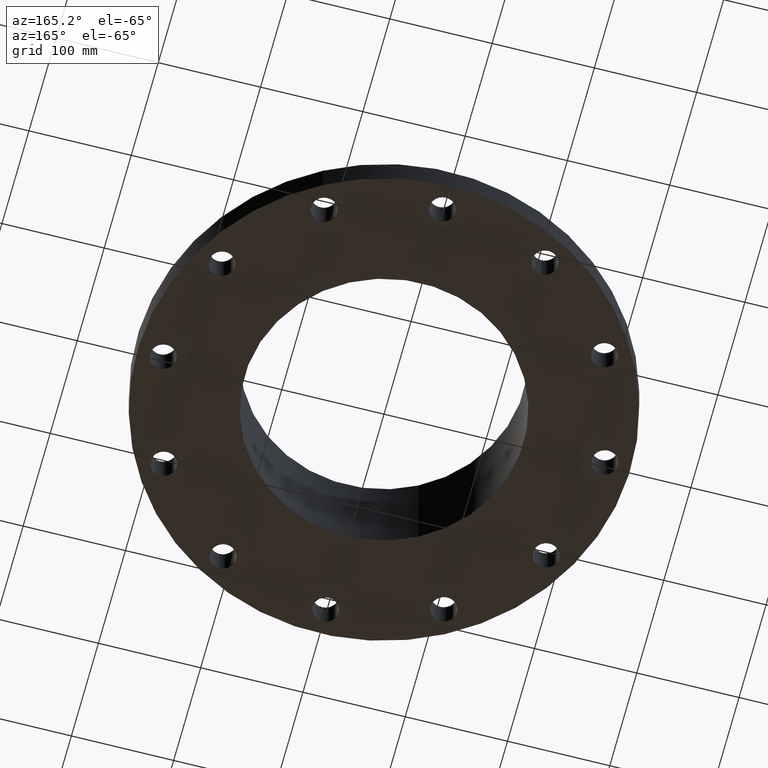
[diagram: clean part render]
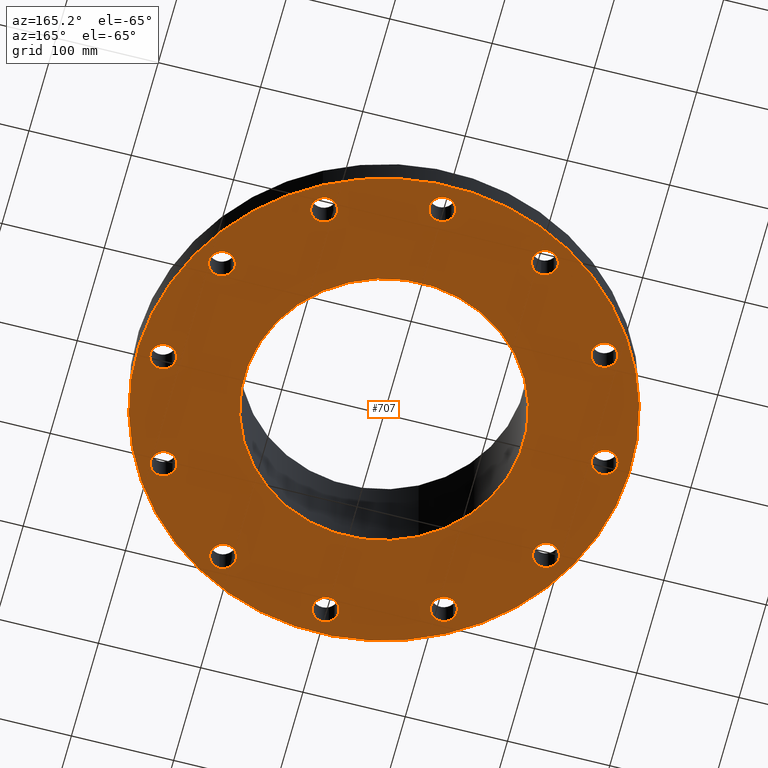
[diagram: same view with one face highlighted and labeled with its STEP entity id]
A machine part, auxiliary view. The second image highlights one B-rep face of the part: STEP entity #707.
In plain terms, the highlighted planar face has unit normal (0, 0, -1).
Its self-contained STEP definition (entity closure, byte-faithful):
#51=AXIS2_PLACEMENT_3D('Circle Axis2P3D',#49,#50,$) ;
#77=AXIS2_PLACEMENT_3D('Circle Axis2P3D',#75,#76,$) ;
#99=AXIS2_PLACEMENT_3D('Circle Axis2P3D',#97,#98,$) ;
#134=AXIS2_PLACEMENT_3D('Circle Axis2P3D',#132,#133,$) ;
#463=AXIS2_PLACEMENT_3D('Circle Axis2P3D',#461,#462,$) ;
#482=AXIS2_PLACEMENT_3D('Circle Axis2P3D',#480,#481,$) ;
#495=AXIS2_PLACEMENT_3D('Plane Axis2P3D',#492,#493,#494) ;
#511=AXIS2_PLACEMENT_3D('Circle Axis2P3D',#509,#510,$) ;
#520=AXIS2_PLACEMENT_3D('Circle Axis2P3D',#518,#519,$) ;
#529=AXIS2_PLACEMENT_3D('Circle Axis2P3D',#527,#528,$) ;
#538=AXIS2_PLACEMENT_3D('Circle Axis2P3D',#536,#537,$) ;
#547=AXIS2_PLACEMENT_3D('Circle Axis2P3D',#545,#546,$) ;
#556=AXIS2_PLACEMENT_3D('Circle Axis2P3D',#554,#555,$) ;
#565=AXIS2_PLACEMENT_3D('Circle Axis2P3D',#563,#564,$) ;
#574=AXIS2_PLACEMENT_3D('Circle Axis2P3D',#572,#573,$) ;
#583=AXIS2_PLACEMENT_3D('Circle Axis2P3D',#581,#582,$) ;
#592=AXIS2_PLACEMENT_3D('Circle Axis2P3D',#590,#591,$) ;
#601=AXIS2_PLACEMENT_3D('Circle Axis2P3D',#599,#600,$) ;
#610=AXIS2_PLACEMENT_3D('Circle Axis2P3D',#608,#609,$) ;
#619=AXIS2_PLACEMENT_3D('Circle Axis2P3D',#617,#618,$) ;
#628=AXIS2_PLACEMENT_3D('Circle Axis2P3D',#626,#627,$) ;
#637=AXIS2_PLACEMENT_3D('Circle Axis2P3D',#635,#636,$) ;
#646=AXIS2_PLACEMENT_3D('Circle Axis2P3D',#644,#645,$) ;
#655=AXIS2_PLACEMENT_3D('Circle Axis2P3D',#653,#654,$) ;
#664=AXIS2_PLACEMENT_3D('Circle Axis2P3D',#662,#663,$) ;
#673=AXIS2_PLACEMENT_3D('Circle Axis2P3D',#671,#672,$) ;
#682=AXIS2_PLACEMENT_3D('Circle Axis2P3D',#680,#681,$) ;
#691=AXIS2_PLACEMENT_3D('Circle Axis2P3D',#689,#690,$) ;
#700=AXIS2_PLACEMENT_3D('Circle Axis2P3D',#698,#699,$) ;
#44=CARTESIAN_POINT('Vertex',(8.06120871909,0.239712769303,0.)) ;
#49=CARTESIAN_POINT('Axis2P3D Location',(8.50000000003,0.,0.)) ;
#53=CARTESIAN_POINT('Vertex',(8.93879128098,-0.239712769303,0.)) ;
#75=CARTESIAN_POINT('Axis2P3D Location',(8.50000000003,0.,0.)) ;
#97=CARTESIAN_POINT('Axis2P3D Location',(0.,0.,5.59482469102E-016)) ;
#101=CARTESIAN_POINT('Vertex',(-4.55454261676,-8.33703433799,5.59482469102E-016)) ;
#103=CARTESIAN_POINT('Vertex',(4.55454261676,8.33703433799,5.59482469102E-016)) ;
#132=CARTESIAN_POINT('Axis2P3D Location',(0.,0.,5.59482469102E-016)) ;
#458=CARTESIAN_POINT('Vertex',(-2.57691227001,-4.71700627018,-3.91637728372E-014)) ;
#461=CARTESIAN_POINT('Axis2P3D Location',(0.,0.,-3.91637728372E-014)) ;
#465=CARTESIAN_POINT('Vertex',(2.57691227001,4.71700627018,-3.91637728372E-014)) ;
#480=CARTESIAN_POINT('Axis2P3D Location',(0.,0.,-3.91637728372E-014)) ;
#492=CARTESIAN_POINT('Axis2P3D Location',(0.,5.37500000002,0.)) ;
#509=CARTESIAN_POINT('Axis2P3D Location',(7.3612159322,-4.25000000002,0.)) ;
#513=CARTESIAN_POINT('Vertex',(7.10106792059,-3.82300701172,0.)) ;
#515=CARTESIAN_POINT('Vertex',(7.6213639438,-4.67699298832,0.)) ;
#518=CARTESIAN_POINT('Axis2P3D Location',(7.3612159322,-4.25000000002,0.)) ;
#527=CARTESIAN_POINT('Axis2P3D Location',(4.25000000002,-7.3612159322,0.)) ;
#531=CARTESIAN_POINT('Vertex',(4.23820170737,-6.86135515129,0.)) ;
#533=CARTESIAN_POINT('Vertex',(4.26179829266,-7.86107671311,0.)) ;
#536=CARTESIAN_POINT('Axis2P3D Location',(4.25000000002,-7.3612159322,0.)) ;
#545=CARTESIAN_POINT('Axis2P3D Location',(5.59482469102E-016,-8.50000000003,0.)) ;
#549=CARTESIAN_POINT('Vertex',(0.239712769303,-8.06120871909,0.)) ;
#551=CARTESIAN_POINT('Vertex',(-0.239712769303,-8.93879128098,0.)) ;
#554=CARTESIAN_POINT('Axis2P3D Location',(-4.19611851827E-016,-8.50000000003,0.)) ;
#563=CARTESIAN_POINT('Axis2P3D Location',(-4.25000000002,-7.3612159322,0.)) ;
#567=CARTESIAN_POINT('Vertex',(-3.82300701172,-7.10106792059,0.)) ;
#569=CARTESIAN_POINT('Vertex',(-4.67699298832,-7.6213639438,-1.1189649382E-015)) ;
#572=CARTESIAN_POINT('Axis2P3D Location',(-4.25000000002,-7.3612159322,0.)) ;
#581=CARTESIAN_POINT('Axis2P3D Location',(-7.3612159322,-4.25000000002,0.)) ;
#585=CARTESIAN_POINT('Vertex',(-6.86135515129,-4.23820170737,0.)) ;
#587=CARTESIAN_POINT('Vertex',(-7.86107671311,-4.26179829266,0.)) ;
#590=CARTESIAN_POINT('Axis2P3D Location',(-7.3612159322,-4.25000000002,0.)) ;
#599=CARTESIAN_POINT('Axis2P3D Location',(-8.50000000003,-1.1189649382E-015,0.)) ;
#603=CARTESIAN_POINT('Vertex',(-8.06120871909,-0.239712769303,0.)) ;
#605=CARTESIAN_POINT('Vertex',(-8.93879128098,0.239712769303,0.)) ;
#608=CARTESIAN_POINT('Axis2P3D Location',(-8.50000000003,-1.1189649382E-015,0.)) ;
#617=CARTESIAN_POINT('Axis2P3D Location',(-7.3612159322,4.25000000002,0.)) ;
#621=CARTESIAN_POINT('Vertex',(-7.10106792059,3.82300701172,0.)) ;
#623=CARTESIAN_POINT('Vertex',(-7.6213639438,4.67699298832,0.)) ;
#626=CARTESIAN_POINT('Axis2P3D Location',(-7.3612159322,4.25000000002,0.)) ;
#635=CARTESIAN_POINT('Axis2P3D Location',(-4.25000000002,7.3612159322,0.)) ;
#639=CARTESIAN_POINT('Vertex',(-4.23820170737,6.86135515129,0.)) ;
#641=CARTESIAN_POINT('Vertex',(-4.26179829266,7.86107671311,0.)) ;
#644=CARTESIAN_POINT('Axis2P3D Location',(-4.25000000002,7.3612159322,0.)) ;
#653=CARTESIAN_POINT('Axis2P3D Location',(-4.19611851827E-016,8.50000000003,0.)) ;
#657=CARTESIAN_POINT('Vertex',(-0.239712769303,8.06120871909,0.)) ;
#659=CARTESIAN_POINT('Vertex',(0.239712769303,8.93879128098,0.)) ;
#662=CARTESIAN_POINT('Axis2P3D Location',(2.09805925913E-016,8.50000000003,0.)) ;
#671=CARTESIAN_POINT('Axis2P3D Location',(4.25000000002,7.3612159322,0.)) ;
#675=CARTESIAN_POINT('Vertex',(3.82300701172,7.10106792059,0.)) ;
#677=CARTESIAN_POINT('Vertex',(4.67699298832,7.6213639438,0.)) ;
#680=CARTESIAN_POINT('Axis2P3D Location',(4.25000000002,7.3612159322,0.)) ;
#689=CARTESIAN_POINT('Axis2P3D Location',(7.3612159322,4.25000000002,0.)) ;
#693=CARTESIAN_POINT('Vertex',(6.86135515129,4.23820170737,0.)) ;
#695=CARTESIAN_POINT('Vertex',(7.86107671311,4.26179829266,0.)) ;
#698=CARTESIAN_POINT('Axis2P3D Location',(7.3612159322,4.25000000002,0.)) ;
#50=DIRECTION('Axis2P3D Direction',(0.,-0.,-0.0393700787402)) ;
#76=DIRECTION('Axis2P3D Direction',(0.,-0.,-0.0393700787402)) ;
#98=DIRECTION('Axis2P3D Direction',(0.,0.,-0.0393700787402)) ;
#133=DIRECTION('Axis2P3D Direction',(0.,0.,-0.0393700787402)) ;
#462=DIRECTION('Axis2P3D Direction',(0.,0.,-0.0393700787402)) ;
#481=DIRECTION('Axis2P3D Direction',(0.,0.,-0.0393700787402)) ;
#493=DIRECTION('Axis2P3D Direction',(0.,0.,-0.0393700787402)) ;
#494=DIRECTION('Axis2P3D XDirection',(0.0393700787402,0.,0.)) ;
#510=DIRECTION('Axis2P3D Direction',(0.,0.,-0.0393700787402)) ;
#519=DIRECTION('Axis2P3D Direction',(0.,0.,-0.0393700787402)) ;
#528=DIRECTION('Axis2P3D Direction',(0.,0.,-0.0393700787402)) ;
#537=DIRECTION('Axis2P3D Direction',(0.,0.,-0.0393700787402)) ;
#546=DIRECTION('Axis2P3D Direction',(0.,0.,-0.0393700787402)) ;
#555=DIRECTION('Axis2P3D Direction',(0.,0.,-0.0393700787402)) ;
#564=DIRECTION('Axis2P3D Direction',(0.,0.,-0.0393700787402)) ;
#573=DIRECTION('Axis2P3D Direction',(0.,0.,-0.0393700787402)) ;
#582=DIRECTION('Axis2P3D Direction',(0.,0.,-0.0393700787402)) ;
#591=DIRECTION('Axis2P3D Direction',(0.,0.,-0.0393700787402)) ;
#600=DIRECTION('Axis2P3D Direction',(0.,0.,-0.0393700787402)) ;
#609=DIRECTION('Axis2P3D Direction',(0.,0.,-0.0393700787402)) ;
#618=DIRECTION('Axis2P3D Direction',(0.,0.,-0.0393700787402)) ;
#627=DIRECTION('Axis2P3D Direction',(0.,0.,-0.0393700787402)) ;
#636=DIRECTION('Axis2P3D Direction',(0.,0.,-0.0393700787402)) ;
#645=DIRECTION('Axis2P3D Direction',(0.,0.,-0.0393700787402)) ;
#654=DIRECTION('Axis2P3D Direction',(0.,0.,-0.0393700787402)) ;
#663=DIRECTION('Axis2P3D Direction',(0.,0.,-0.0393700787402)) ;
#672=DIRECTION('Axis2P3D Direction',(0.,0.,-0.0393700787402)) ;
#681=DIRECTION('Axis2P3D Direction',(0.,0.,-0.0393700787402)) ;
#690=DIRECTION('Axis2P3D Direction',(0.,0.,-0.0393700787402)) ;
#699=DIRECTION('Axis2P3D Direction',(0.,0.,-0.0393700787402)) ;
#498=ORIENTED_EDGE('',*,*,#105,.T.) ;
#499=ORIENTED_EDGE('',*,*,#136,.T.) ;
#502=ORIENTED_EDGE('',*,*,#79,.F.) ;
#503=ORIENTED_EDGE('',*,*,#55,.F.) ;
#506=ORIENTED_EDGE('',*,*,#484,.F.) ;
#507=ORIENTED_EDGE('',*,*,#467,.F.) ;
#524=ORIENTED_EDGE('',*,*,#517,.F.) ;
#525=ORIENTED_EDGE('',*,*,#522,.F.) ;
#542=ORIENTED_EDGE('',*,*,#535,.F.) ;
#543=ORIENTED_EDGE('',*,*,#540,.F.) ;
#560=ORIENTED_EDGE('',*,*,#553,.F.) ;
#561=ORIENTED_EDGE('',*,*,#558,.F.) ;
#578=ORIENTED_EDGE('',*,*,#571,.F.) ;
#579=ORIENTED_EDGE('',*,*,#576,.F.) ;
#596=ORIENTED_EDGE('',*,*,#589,.F.) ;
#597=ORIENTED_EDGE('',*,*,#594,.F.) ;
#614=ORIENTED_EDGE('',*,*,#607,.F.) ;
#615=ORIENTED_EDGE('',*,*,#612,.F.) ;
#632=ORIENTED_EDGE('',*,*,#625,.F.) ;
#633=ORIENTED_EDGE('',*,*,#630,.F.) ;
#650=ORIENTED_EDGE('',*,*,#643,.F.) ;
#651=ORIENTED_EDGE('',*,*,#648,.F.) ;
#668=ORIENTED_EDGE('',*,*,#661,.F.) ;
#669=ORIENTED_EDGE('',*,*,#666,.F.) ;
#686=ORIENTED_EDGE('',*,*,#679,.F.) ;
#687=ORIENTED_EDGE('',*,*,#684,.F.) ;
#704=ORIENTED_EDGE('',*,*,#697,.F.) ;
#705=ORIENTED_EDGE('',*,*,#702,.F.) ;
#504=FACE_BOUND('',#501,.T.) ;
#508=FACE_BOUND('',#505,.T.) ;
#526=FACE_BOUND('',#523,.T.) ;
#544=FACE_BOUND('',#541,.T.) ;
#562=FACE_BOUND('',#559,.T.) ;
#580=FACE_BOUND('',#577,.T.) ;
#598=FACE_BOUND('',#595,.T.) ;
#616=FACE_BOUND('',#613,.T.) ;
#634=FACE_BOUND('',#631,.T.) ;
#652=FACE_BOUND('',#649,.T.) ;
#670=FACE_BOUND('',#667,.T.) ;
#688=FACE_BOUND('',#685,.T.) ;
#706=FACE_BOUND('',#703,.T.) ;
#707=ADVANCED_FACE('PartBody',(#500,#504,#508,#526,#544,#562,#580,#598,#616,#634,#652,#670,#688,#706),#496,.T.) ;
#52=CIRCLE('generated circle',#51,0.500000000002) ;
#78=CIRCLE('generated circle',#77,0.500000000002) ;
#100=CIRCLE('generated circle',#99,9.50000000004) ;
#135=CIRCLE('generated circle',#134,9.50000000004) ;
#464=CIRCLE('generated circle',#463,5.37500000002) ;
#483=CIRCLE('generated circle',#482,5.37500000002) ;
#512=CIRCLE('generated circle',#511,0.500000000002) ;
#521=CIRCLE('generated circle',#520,0.500000000002) ;
#530=CIRCLE('generated circle',#529,0.500000000002) ;
#539=CIRCLE('generated circle',#538,0.500000000002) ;
#548=CIRCLE('generated circle',#547,0.500000000002) ;
#557=CIRCLE('generated circle',#556,0.500000000002) ;
#566=CIRCLE('generated circle',#565,0.500000000002) ;
#575=CIRCLE('generated circle',#574,0.500000000002) ;
#584=CIRCLE('generated circle',#583,0.500000000002) ;
#593=CIRCLE('generated circle',#592,0.500000000002) ;
#602=CIRCLE('generated circle',#601,0.500000000002) ;
#611=CIRCLE('generated circle',#610,0.500000000002) ;
#620=CIRCLE('generated circle',#619,0.500000000002) ;
#629=CIRCLE('generated circle',#628,0.500000000002) ;
#638=CIRCLE('generated circle',#637,0.500000000002) ;
#647=CIRCLE('generated circle',#646,0.500000000002) ;
#656=CIRCLE('generated circle',#655,0.500000000002) ;
#665=CIRCLE('generated circle',#664,0.500000000002) ;
#674=CIRCLE('generated circle',#673,0.500000000002) ;
#683=CIRCLE('generated circle',#682,0.500000000002) ;
#692=CIRCLE('generated circle',#691,0.500000000002) ;
#701=CIRCLE('generated circle',#700,0.500000000002) ;
#55=EDGE_CURVE('',#45,#54,#52,.T.) ;
#79=EDGE_CURVE('',#54,#45,#78,.T.) ;
#105=EDGE_CURVE('',#102,#104,#100,.T.) ;
#136=EDGE_CURVE('',#104,#102,#135,.T.) ;
#467=EDGE_CURVE('',#459,#466,#464,.T.) ;
#484=EDGE_CURVE('',#466,#459,#483,.T.) ;
#517=EDGE_CURVE('',#514,#516,#512,.T.) ;
#522=EDGE_CURVE('',#516,#514,#521,.T.) ;
#535=EDGE_CURVE('',#532,#534,#530,.T.) ;
#540=EDGE_CURVE('',#534,#532,#539,.T.) ;
#553=EDGE_CURVE('',#550,#552,#548,.T.) ;
#558=EDGE_CURVE('',#552,#550,#557,.T.) ;
#571=EDGE_CURVE('',#568,#570,#566,.T.) ;
#576=EDGE_CURVE('',#570,#568,#575,.T.) ;
#589=EDGE_CURVE('',#586,#588,#584,.T.) ;
#594=EDGE_CURVE('',#588,#586,#593,.T.) ;
#607=EDGE_CURVE('',#604,#606,#602,.T.) ;
#612=EDGE_CURVE('',#606,#604,#611,.T.) ;
#625=EDGE_CURVE('',#622,#624,#620,.T.) ;
#630=EDGE_CURVE('',#624,#622,#629,.T.) ;
#643=EDGE_CURVE('',#640,#642,#638,.T.) ;
#648=EDGE_CURVE('',#642,#640,#647,.T.) ;
#661=EDGE_CURVE('',#658,#660,#656,.T.) ;
#666=EDGE_CURVE('',#660,#658,#665,.T.) ;
#679=EDGE_CURVE('',#676,#678,#674,.T.) ;
#684=EDGE_CURVE('',#678,#676,#683,.T.) ;
#697=EDGE_CURVE('',#694,#696,#692,.T.) ;
#702=EDGE_CURVE('',#696,#694,#701,.T.) ;
#497=EDGE_LOOP('',(#498,#499)) ;
#501=EDGE_LOOP('',(#502,#503)) ;
#505=EDGE_LOOP('',(#506,#507)) ;
#523=EDGE_LOOP('',(#524,#525)) ;
#541=EDGE_LOOP('',(#542,#543)) ;
#559=EDGE_LOOP('',(#560,#561)) ;
#577=EDGE_LOOP('',(#578,#579)) ;
#595=EDGE_LOOP('',(#596,#597)) ;
#613=EDGE_LOOP('',(#614,#615)) ;
#631=EDGE_LOOP('',(#632,#633)) ;
#649=EDGE_LOOP('',(#650,#651)) ;
#667=EDGE_LOOP('',(#668,#669)) ;
#685=EDGE_LOOP('',(#686,#687)) ;
#703=EDGE_LOOP('',(#704,#705)) ;
#500=FACE_OUTER_BOUND('',#497,.T.) ;
#496=PLANE('',#495) ;
#45=VERTEX_POINT('',#44) ;
#54=VERTEX_POINT('',#53) ;
#102=VERTEX_POINT('',#101) ;
#104=VERTEX_POINT('',#103) ;
#459=VERTEX_POINT('',#458) ;
#466=VERTEX_POINT('',#465) ;
#514=VERTEX_POINT('',#513) ;
#516=VERTEX_POINT('',#515) ;
#532=VERTEX_POINT('',#531) ;
#534=VERTEX_POINT('',#533) ;
#550=VERTEX_POINT('',#549) ;
#552=VERTEX_POINT('',#551) ;
#568=VERTEX_POINT('',#567) ;
#570=VERTEX_POINT('',#569) ;
#586=VERTEX_POINT('',#585) ;
#588=VERTEX_POINT('',#587) ;
#604=VERTEX_POINT('',#603) ;
#606=VERTEX_POINT('',#605) ;
#622=VERTEX_POINT('',#621) ;
#624=VERTEX_POINT('',#623) ;
#640=VERTEX_POINT('',#639) ;
#642=VERTEX_POINT('',#641) ;
#658=VERTEX_POINT('',#657) ;
#660=VERTEX_POINT('',#659) ;
#676=VERTEX_POINT('',#675) ;
#678=VERTEX_POINT('',#677) ;
#694=VERTEX_POINT('',#693) ;
#696=VERTEX_POINT('',#695) ;